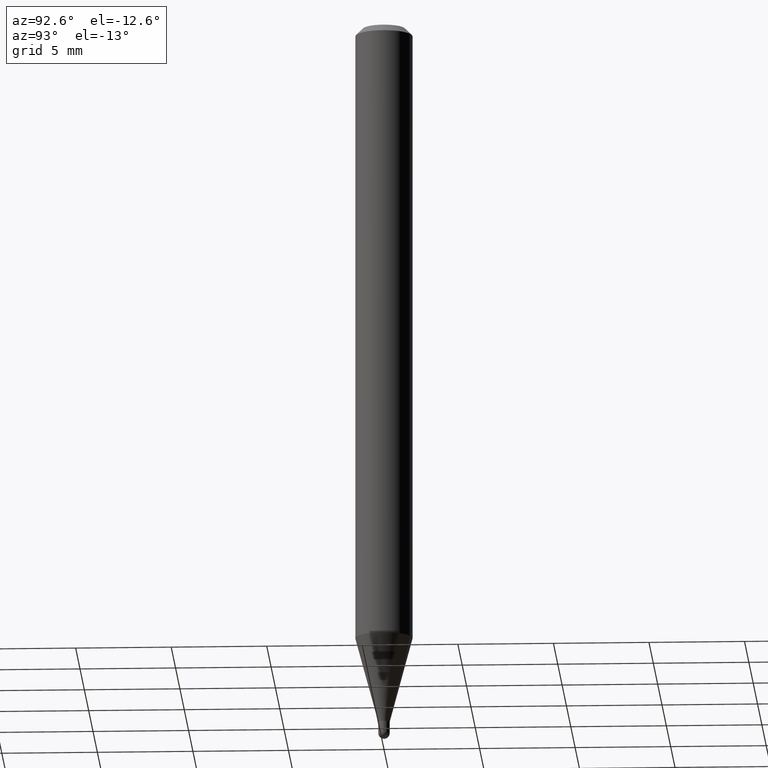
[diagram: clean part render]
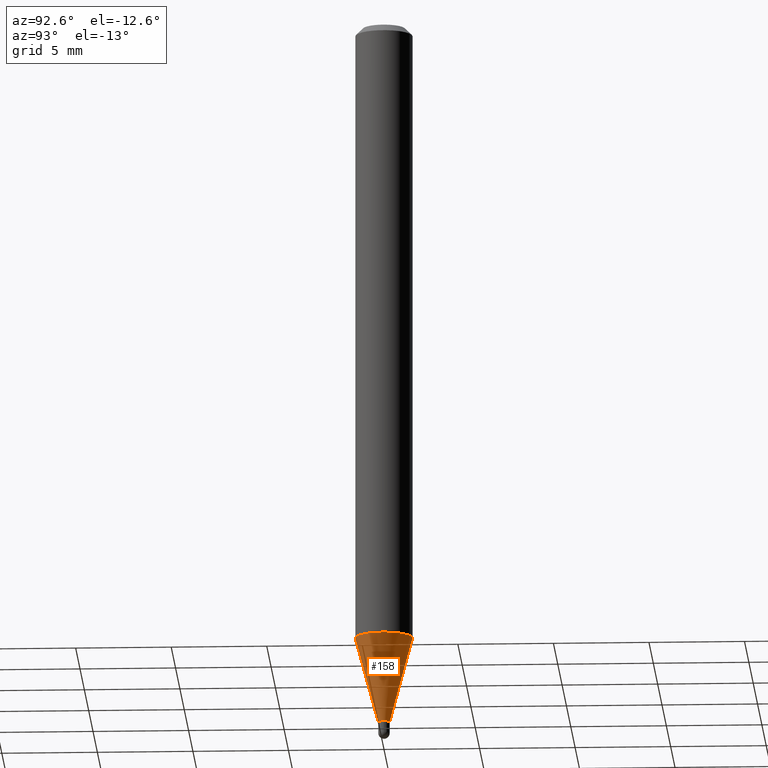
[diagram: same view with one face highlighted and labeled with its STEP entity id]
A machine part, auxiliary view. The second image highlights one B-rep face of the part: STEP entity #158.
In plain terms, the highlighted conical surface has half-angle 15 deg.
Its self-contained STEP definition (entity closure, byte-faithful):
#2 = VERTEX_POINT ( 'NONE', #429 ) ;
#12 = LINE ( 'NONE', #192, #171 ) ;
#14 = AXIS2_PLACEMENT_3D ( 'NONE', #217, #132, #504 ) ;
#27 = VECTOR ( 'NONE', #327, 39.37007874015748854 ) ;
#103 = DIRECTION ( 'NONE',  ( -2.445423680011858089E-29, 3.491545962091702599E-15, 1.000000000000000000 ) ) ;
#132 = DIRECTION ( 'NONE',  ( -2.445423680011858089E-29, 3.491545962091702599E-15, 1.000000000000000000 ) ) ;
#143 = CARTESIAN_POINT ( 'NONE',  ( 3.572030369393320599E-29, -5.100101186827348923E-15, -1.460699999999999887 ) ) ;
#158 = ADVANCED_FACE ( 'NONE', ( #235 ), #394, .T. ) ;
#163 = DIRECTION ( 'NONE',  ( -1.807323732225379838E-15, -0.2588190451025252914, 0.9659258262890670910 ) ) ;
#171 = VECTOR ( 'NONE', #163, 39.37007874015748143 ) ;
#192 = CARTESIAN_POINT ( 'NONE',  ( -8.239895959665980251E-17, -0.01180000000000475287, -1.460699999999999887 ) ) ;
#194 = VERTEX_POINT ( 'NONE', #422 ) ;
#201 = VERTEX_POINT ( 'NONE', #493 ) ;
#211 = EDGE_CURVE ( 'NONE', #194, #201, #374, .T. ) ;
#212 = EDGE_CURVE ( 'NONE', #2, #242, #436, .T. ) ;
#217 = CARTESIAN_POINT ( 'NONE',  ( 3.140805823306065570E-29, -4.484404064503547858E-15, -1.284360599342374787 ) ) ;
#223 = CARTESIAN_POINT ( 'NONE',  ( 3.572030369393320599E-29, -5.100101186827348923E-15, -1.460699999999999887 ) ) ;
#228 = DIRECTION ( 'NONE',  ( -6.982962677686266711E-15, -1.000000000000000000, 0.000000000000000000 ) ) ;
#235 = FACE_OUTER_BOUND ( 'NONE', #313, .T. ) ;
#242 = VERTEX_POINT ( 'NONE', #295 ) ;
#267 = DIRECTION ( 'NONE',  ( -6.982962677686266711E-15, -1.000000000000000000, 0.000000000000000000 ) ) ;
#280 = ORIENTED_EDGE ( 'NONE', *, *, #366, .T. ) ;
#295 = CARTESIAN_POINT ( 'NONE',  ( 2.517097641430478704E-16, 0.01179999999999455269, -1.460699999999999887 ) ) ;
#303 = AXIS2_PLACEMENT_3D ( 'NONE', #223, #427, #228 ) ;
#313 = EDGE_LOOP ( 'NONE', ( #431, #280, #393, #401 ) ) ;
#317 = AXIS2_PLACEMENT_3D ( 'NONE', #143, #103, #267 ) ;
#327 = DIRECTION ( 'NONE',  ( 1.839019923739650408E-15, 0.2588190451025320082, 0.9659258262890650926 ) ) ;
#333 = LINE ( 'NONE', #411, #27 ) ;
#346 = EDGE_CURVE ( 'NONE', #2, #194, #12, .T. ) ;
#366 = EDGE_CURVE ( 'NONE', #242, #201, #333, .T. ) ;
#374 = CIRCLE ( 'NONE', #14, 0.05904999999999999832 ) ;
#393 = ORIENTED_EDGE ( 'NONE', *, *, #211, .F. ) ;
#394 = CONICAL_SURFACE ( 'NONE', #303, 0.01179999999999965278, 0.2617993877991576235 ) ;
#401 = ORIENTED_EDGE ( 'NONE', *, *, #346, .F. ) ;
#411 = CARTESIAN_POINT ( 'NONE',  ( 8.384404281972505075E-17, 0.01179999999999455269, -1.460699999999999887 ) ) ;
#422 = CARTESIAN_POINT ( 'NONE',  ( -4.123439461173426262E-16, -0.05905000000000448085, -1.284360599342374565 ) ) ;
#427 = DIRECTION ( 'NONE',  ( -2.445423680011858089E-29, 3.491545962091702599E-15, 1.000000000000000000 ) ) ;
#429 = CARTESIAN_POINT ( 'NONE',  ( -8.239895959665980251E-17, -0.01180000000000475287, -1.460699999999999887 ) ) ;
#431 = ORIENTED_EDGE ( 'NONE', *, *, #212, .T. ) ;
#436 = CIRCLE ( 'NONE', #317, 0.01179999999999965278 ) ;
#493 = CARTESIAN_POINT ( 'NONE',  ( 4.195754854663704065E-16, 0.05904999999999550886, -1.284360599342375009 ) ) ;
#504 = DIRECTION ( 'NONE',  ( -6.982962677686265922E-15, -1.000000000000000000, 4.626330217890369336E-15 ) ) ;